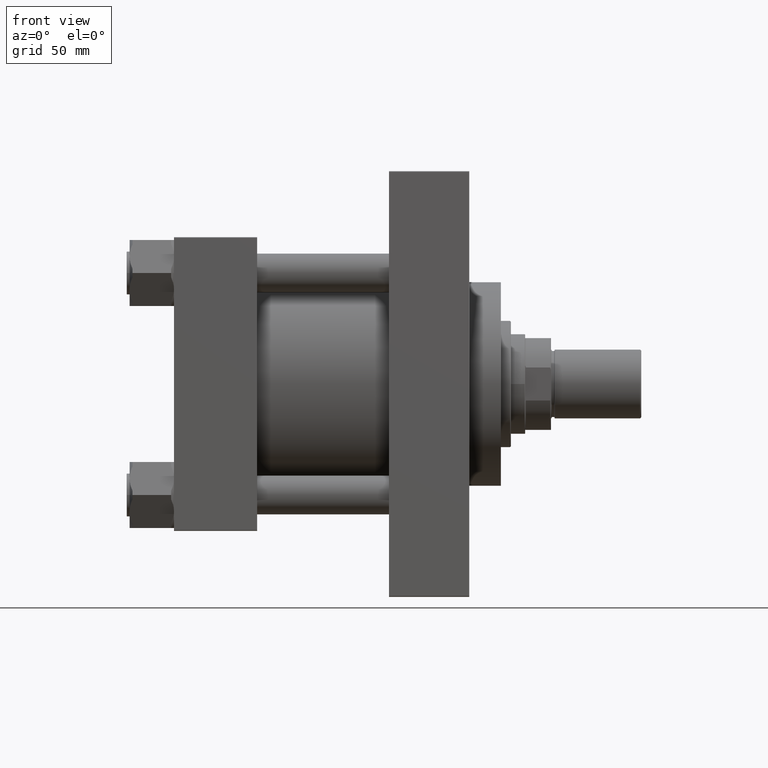
[diagram: clean part render]
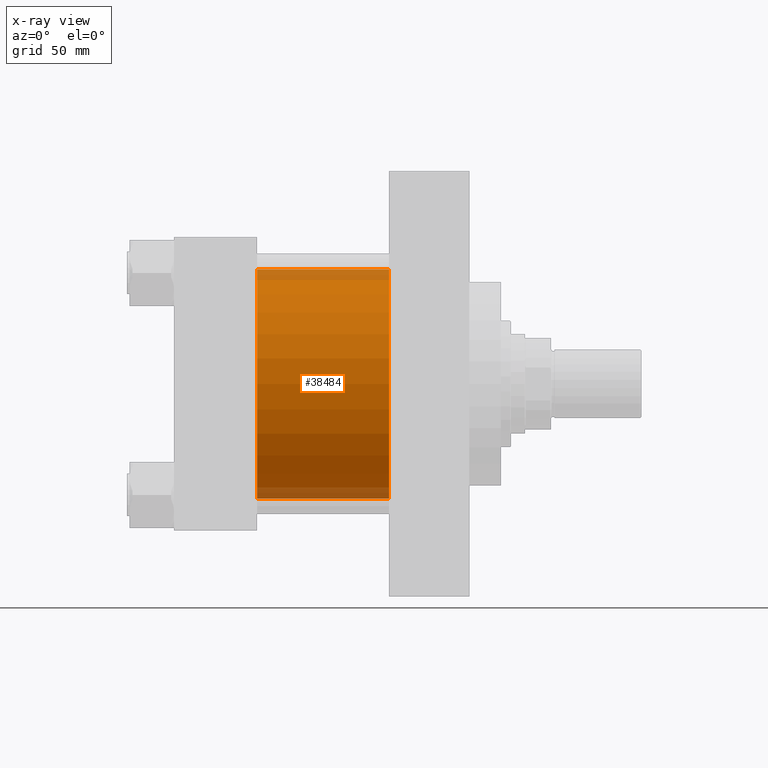
[diagram: x-ray — body ghosted, one internal face saturated and labeled with its STEP entity id]
A machine part, front view, then the same camera in x-ray: the body is ghosted and one INTERNAL B-rep face — a face not visible from any outside direction — is saturated and labeled: STEP entity #38484.
In plain terms, the highlighted cylindrical surface (partial cylindrical patch) has radius 80 mm, axis along (-1, -0, -0).
Its self-contained STEP definition (entity closure, byte-faithful):
#1172 = DIRECTION ( 'NONE',  ( 0.000000000000000000, 0.000000000000000000, -1.000000000000000000 ) ) ;
#2387 = FACE_OUTER_BOUND ( 'NONE', #30772, .T. ) ;
#4849 = DIRECTION ( 'NONE',  ( 1.000000000000000000, 0.000000000000000000, 0.000000000000000000 ) ) ;
#5297 = VECTOR ( 'NONE', #23441, 1000.000000000000000 ) ;
#5572 = DIRECTION ( 'NONE',  ( -1.000000000000000000, -0.000000000000000000, -0.000000000000000000 ) ) ;
#5837 = CARTESIAN_POINT ( 'NONE',  ( 150.0000000000000000, 7.195089179213615410E-15, -80.00000000000000000 ) ) ;
#8911 = VERTEX_POINT ( 'NONE', #20875 ) ;
#9694 = CARTESIAN_POINT ( 'NONE',  ( 150.0000000000000000, -2.602085213965210642E-15, 80.00000000000000000 ) ) ;
#10192 = ORIENTED_EDGE ( 'NONE', *, *, #18258, .F. ) ;
#11050 = ORIENTED_EDGE ( 'NONE', *, *, #22265, .F. ) ;
#13600 = CARTESIAN_POINT ( 'NONE',  ( 150.0000000000000000, -2.602085213965210642E-15, 0.000000000000000000 ) ) ;
#14098 = CIRCLE ( 'NONE', #44481, 80.00000000000000000 ) ;
#14718 = CARTESIAN_POINT ( 'NONE',  ( 150.0000000000000000, -2.602085213965210642E-15, 0.000000000000000000 ) ) ;
#18258 = EDGE_CURVE ( 'NONE', #47417, #42090, #20013, .T. ) ;
#19240 = LINE ( 'NONE', #30446, #24168 ) ;
#20013 = LINE ( 'NONE', #28051, #5297 ) ;
#20875 = CARTESIAN_POINT ( 'NONE',  ( 58.00000000000000000, 7.195089179213615410E-15, -80.00000000000000000 ) ) ;
#22265 = EDGE_CURVE ( 'NONE', #42090, #8911, #22539, .T. ) ;
#22539 = CIRCLE ( 'NONE', #41959, 80.00000000000000000 ) ;
#23441 = DIRECTION ( 'NONE',  ( -1.000000000000000000, -0.000000000000000000, -0.000000000000000000 ) ) ;
#23562 = ORIENTED_EDGE ( 'NONE', *, *, #42855, .T. ) ;
#24168 = VECTOR ( 'NONE', #29721, 1000.000000000000000 ) ;
#25588 = CARTESIAN_POINT ( 'NONE',  ( 58.00000000000000000, -2.602085213965210642E-15, 80.00000000000000000 ) ) ;
#25933 = DIRECTION ( 'NONE',  ( 0.000000000000000000, 0.000000000000000000, -1.000000000000000000 ) ) ;
#26550 = ORIENTED_EDGE ( 'NONE', *, *, #28066, .T. ) ;
#28051 = CARTESIAN_POINT ( 'NONE',  ( 150.0000000000000000, -2.602085213965210642E-15, 80.00000000000000000 ) ) ;
#28066 = EDGE_CURVE ( 'NONE', #47417, #31566, #14098, .T. ) ;
#29721 = DIRECTION ( 'NONE',  ( -1.000000000000000000, -0.000000000000000000, -0.000000000000000000 ) ) ;
#30446 = CARTESIAN_POINT ( 'NONE',  ( 150.0000000000000000, 7.195089179213615410E-15, -80.00000000000000000 ) ) ;
#30772 = EDGE_LOOP ( 'NONE', ( #26550, #23562, #11050, #10192 ) ) ;
#31566 = VERTEX_POINT ( 'NONE', #5837 ) ;
#31866 = DIRECTION ( 'NONE',  ( 0.000000000000000000, 0.000000000000000000, 1.000000000000000000 ) ) ;
#34885 = AXIS2_PLACEMENT_3D ( 'NONE', #13600, #5572, #31866 ) ;
#38484 = ADVANCED_FACE ( 'NONE', ( #2387 ), #38913, .F. ) ;
#38913 = CYLINDRICAL_SURFACE ( 'NONE', #34885, 80.00000000000000000 ) ;
#41226 = DIRECTION ( 'NONE',  ( 1.000000000000000000, 0.000000000000000000, 0.000000000000000000 ) ) ;
#41357 = CARTESIAN_POINT ( 'NONE',  ( 58.00000000000000000, -2.602085213965210642E-15, 0.000000000000000000 ) ) ;
#41959 = AXIS2_PLACEMENT_3D ( 'NONE', #41357, #4849, #1172 ) ;
#42090 = VERTEX_POINT ( 'NONE', #25588 ) ;
#42855 = EDGE_CURVE ( 'NONE', #31566, #8911, #19240, .T. ) ;
#44481 = AXIS2_PLACEMENT_3D ( 'NONE', #14718, #41226, #25933 ) ;
#47417 = VERTEX_POINT ( 'NONE', #9694 ) ;